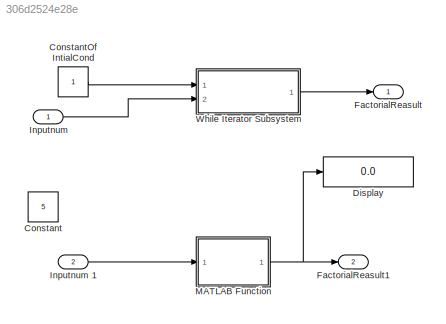
MODEL slx_306d2524e28e
KIND model
CONFIG AbsTol = auto
CONFIG EnableMultiTasking = off
CONFIG FixedStep = auto
CONFIG MaxStep = auto
CONFIG MinStep = auto
CONFIG RelTol = 1e-3
CONFIG SampleTimeConstraint = Unconstrained
CONFIG Solver = VariableStepAuto
CONFIG SolverName = VariableStepAuto
CONFIG StartTime = 0.0
CONFIG StopTime = 10.0
BLOCK [Constant] Constant
  Value = 5
BLOCK [Constant] ConstantOf IntialCond
  OutDataTypeStr = uint16
BLOCK [Display] Display
  Decimation = 1
  Ports = [1]
BLOCK [Outport] FactorialReasult
  IconDisplay = Port number
BLOCK [Outport] FactorialReasult1
  IconDisplay = Port number
  Port = 2
BLOCK [Inport] Inputnum 
  IconDisplay = Port number
BLOCK [Inport] Inputnum 1
  IconDisplay = Port number
  OutDataTypeStr = uint16
  Port = 2
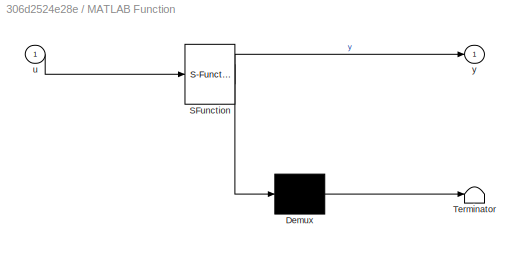
BLOCK [SubSystem] MATLAB Function
  ErrorFcn = Stateflow.Translate.translate
  PermitHierarchicalResolution = ExplicitOnly
  Ports = [1, 1]
  RequestExecContextInheritance = off
  SFBlockType = MATLAB Function
  TreatAsAtomicUnit = on
BLOCK [Demux] MATLAB Function/ Demux 
  Outputs = 1
  Ports = [1, 1]
BLOCK [S-Function] MATLAB Function/ SFunction 
  EnableBusSupport = on
  FunctionName = sf_sfun
  PortCounts = [1 2]
  Ports = [1, 2]
  SFcnIsStateOwnerBlock = off
  SFunctionDeploymentMode = off
  Tag = Stateflow S-Function FactorialLoopFunc 2
BLOCK [Terminator] MATLAB Function/ Terminator 
BLOCK [Inport] MATLAB Function/u
  IconDisplay = Port number
BLOCK [Outport] MATLAB Function/y
  IconDisplay = Port number
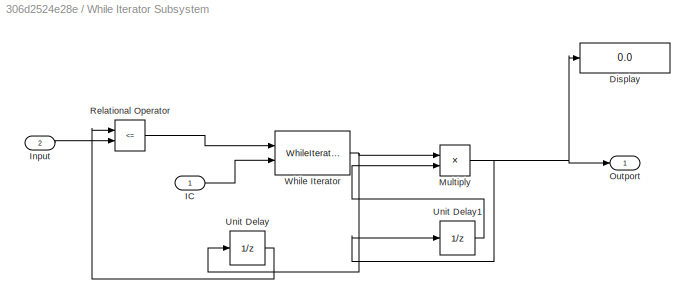
BLOCK [SubSystem] While Iterator Subsystem
  Ports = [2, 1]
  RequestExecContextInheritance = off
  TreatAsAtomicUnit = on
BLOCK [Display] While Iterator Subsystem/Display
  Decimation = 1
  Ports = [1]
BLOCK [Inport] While Iterator Subsystem/IC
  IconDisplay = Port number
  OutDataTypeStr = uint16
BLOCK [Inport] While Iterator Subsystem/Input
  IconDisplay = Port number
  Port = 2
BLOCK [Product] While Iterator Subsystem/Multiply
  InputSameDT = off
  OutDataTypeStr = Inherit: Inherit via internal rule
  Ports = [2, 1]
  RndMeth = Floor
  SaturateOnIntegerOverflow = off
BLOCK [Outport] While Iterator Subsystem/Outport
  IconDisplay = Port number
BLOCK [RelationalOperator] While Iterator Subsystem/Relational Operator
  InputSameDT = off
  Operator = <=
  OutDataTypeStr = boolean
  Ports = [2, 1]
  RndMeth = Simplest
BLOCK [UnitDelay] While Iterator Subsystem/Unit Delay
  InitialCondition = 1
  InputProcessing = Elements as channels (sample based)
  SampleTime = -1
BLOCK [UnitDelay] While Iterator Subsystem/Unit Delay1
  InitialCondition = 1
  InputProcessing = Elements as channels (sample based)
  SampleTime = -1
BLOCK [WhileIterator] While Iterator Subsystem/While Iterator
  OutputDataType = double
  Ports = [2, 1]
  ResetStates = reset
  ShowIterationPort = on
LINE ConstantOf IntialCond:1 -> While Iterator Subsystem:1
LINE Inputnum 1:1 -> MATLAB Function:1
LINE Inputnum :1 -> While Iterator Subsystem:2
NET MATLAB Function:1 -> Display:1, FactorialReasult1:1
LINE While Iterator Subsystem/IC:1 -> While Iterator Subsystem/While Iterator:2
LINE While Iterator Subsystem/Input:1 -> While Iterator Subsystem/Relational Operator:2
NET While Iterator Subsystem/Multiply:1 -> While Iterator Subsystem/Display:1, While Iterator Subsystem/Outport:1, While Iterator Subsystem/Unit Delay1:1
LINE While Iterator Subsystem/Relational Operator:1 -> While Iterator Subsystem/While Iterator:1
LINE While Iterator Subsystem/Unit Delay1:1 -> While Iterator Subsystem/Multiply:2
LINE While Iterator Subsystem/Unit Delay:1 -> While Iterator Subsystem/Relational Operator:1
NET While Iterator Subsystem/While Iterator:1 -> While Iterator Subsystem/Multiply:1, While Iterator Subsystem/Unit Delay:1
LINE While Iterator Subsystem:1 -> FactorialReasult:1
note: NET lines group one-source signal fan-out (src -> all destinations, sorted); 1:1 wires keep LINE
CHART MATLAB Function states=1 transitions=1
  STATE_LABEL 'eML_blk_kernel()'
  STATE_LABEL 'SCRIPT:\nfunction y = fcn(u)\nn = 1;\ny = 1;\nwhile n <= u\n    y = y * n;\n    n = n + 1;\nend\nend\n\n'
